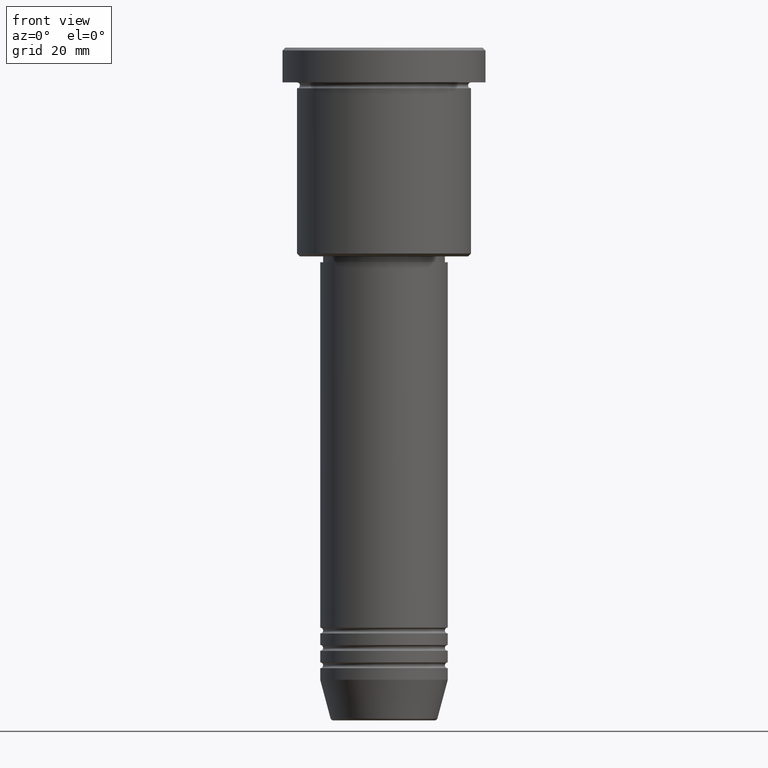
[diagram: clean part render]
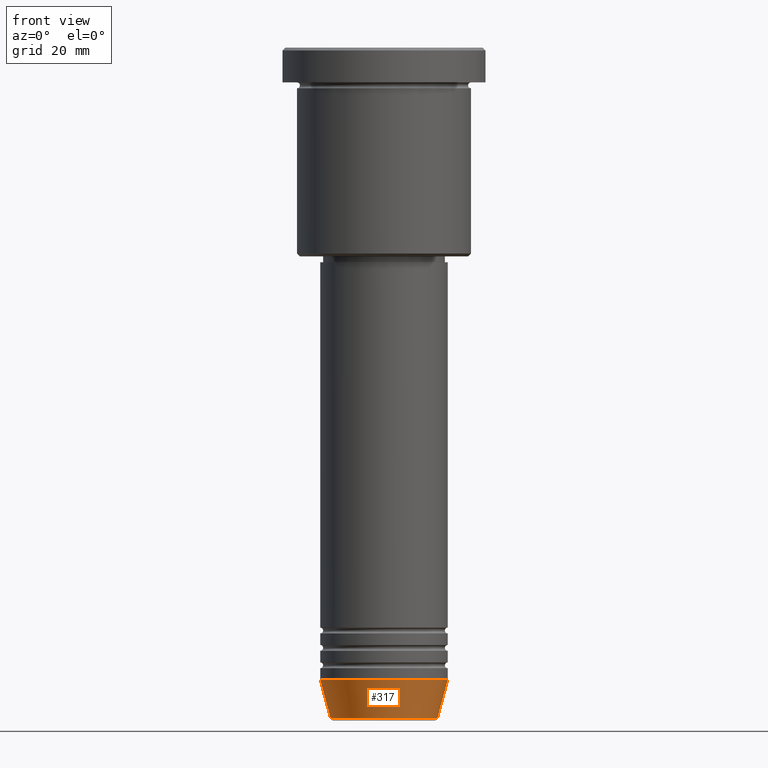
[diagram: same view with one face highlighted and labeled with its STEP entity id]
A machine part, front view. The second image highlights one B-rep face of the part: STEP entity #317.
In plain terms, the highlighted conical surface has half-angle 15 deg.
Its self-contained STEP definition (entity closure, byte-faithful):
#53 = ORIENTED_EDGE ( 'NONE', *, *, #789, .F. ) ;
#60 = VERTEX_POINT ( 'NONE', #683 ) ;
#74 = DIRECTION ( 'NONE',  ( 1.000000000000000000, 0.000000000000000000, 0.000000000000000000 ) ) ;
#99 = CARTESIAN_POINT ( 'NONE',  ( 0.000000000000000000, 0.000000000000000000, -109.0000000000000142 ) ) ;
#117 = DIRECTION ( 'NONE',  ( 1.000000000000000000, 0.000000000000000000, 0.000000000000000000 ) ) ;
#122 = CIRCLE ( 'NONE', #695, 11.00000000000000000 ) ;
#127 = DIRECTION ( 'NONE',  ( 0.2588190451025213501, 0.000000000000000000, 0.9659258262890680902 ) ) ;
#135 = VERTEX_POINT ( 'NONE', #884 ) ;
#190 = DIRECTION ( 'NONE',  ( -0.000000000000000000, -0.000000000000000000, 1.000000000000000000 ) ) ;
#244 = CARTESIAN_POINT ( 'NONE',  ( 11.00000000000000000, 0.000000000000000000, -109.0000000000000142 ) ) ;
#275 = CARTESIAN_POINT ( 'NONE',  ( -9.223655072137191269, 1.238341722557647202E-15, -115.6294095225512564 ) ) ;
#283 = DIRECTION ( 'NONE',  ( -0.2588190451025213501, 3.169619151431772337E-17, 0.9659258262890680902 ) ) ;
#309 = CONICAL_SURFACE ( 'NONE', #977, 11.00000000000000000, 0.2617993877991500740 ) ;
#317 = ADVANCED_FACE ( 'NONE', ( #923 ), #309, .T. ) ;
#336 = ORIENTED_EDGE ( 'NONE', *, *, #575, .T. ) ;
#424 = VERTEX_POINT ( 'NONE', #275 ) ;
#430 = LINE ( 'NONE', #437, #825 ) ;
#437 = CARTESIAN_POINT ( 'NONE',  ( -11.00000000000000000, 1.347111479062088405E-15, -109.0000000000000142 ) ) ;
#455 = DIRECTION ( 'NONE',  ( -0.000000000000000000, -0.000000000000000000, 1.000000000000000000 ) ) ;
#464 = DIRECTION ( 'NONE',  ( 1.000000000000000000, 0.000000000000000000, 0.000000000000000000 ) ) ;
#478 = VERTEX_POINT ( 'NONE', #1116 ) ;
#517 = EDGE_LOOP ( 'NONE', ( #53, #336, #939, #812 ) ) ;
#529 = VECTOR ( 'NONE', #127, 1000.000000000000000 ) ;
#575 = EDGE_CURVE ( 'NONE', #424, #478, #928, .T. ) ;
#683 = CARTESIAN_POINT ( 'NONE',  ( -11.00000000000000000, 1.347111479062088405E-15, -109.0000000000000142 ) ) ;
#695 = AXIS2_PLACEMENT_3D ( 'NONE', #922, #455, #74 ) ;
#746 = CARTESIAN_POINT ( 'NONE',  ( 0.000000000000000000, 0.000000000000000000, -115.6294095225512564 ) ) ;
#789 = EDGE_CURVE ( 'NONE', #424, #60, #430, .T. ) ;
#812 = ORIENTED_EDGE ( 'NONE', *, *, #856, .F. ) ;
#825 = VECTOR ( 'NONE', #283, 1000.000000000000000 ) ;
#856 = EDGE_CURVE ( 'NONE', #60, #135, #122, .T. ) ;
#884 = CARTESIAN_POINT ( 'NONE',  ( 11.00000000000000000, 0.000000000000000000, -109.0000000000000142 ) ) ;
#922 = CARTESIAN_POINT ( 'NONE',  ( 0.000000000000000000, 0.000000000000000000, -109.0000000000000142 ) ) ;
#923 = FACE_OUTER_BOUND ( 'NONE', #517, .T. ) ;
#928 = CIRCLE ( 'NONE', #1017, 9.223655072137191269 ) ;
#939 = ORIENTED_EDGE ( 'NONE', *, *, #1168, .T. ) ;
#977 = AXIS2_PLACEMENT_3D ( 'NONE', #99, #190, #464 ) ;
#1017 = AXIS2_PLACEMENT_3D ( 'NONE', #746, #1114, #117 ) ;
#1114 = DIRECTION ( 'NONE',  ( -0.000000000000000000, -0.000000000000000000, 1.000000000000000000 ) ) ;
#1116 = CARTESIAN_POINT ( 'NONE',  ( 9.223655072137191269, 0.000000000000000000, -115.6294095225512564 ) ) ;
#1141 = LINE ( 'NONE', #244, #529 ) ;
#1168 = EDGE_CURVE ( 'NONE', #478, #135, #1141, .T. ) ;